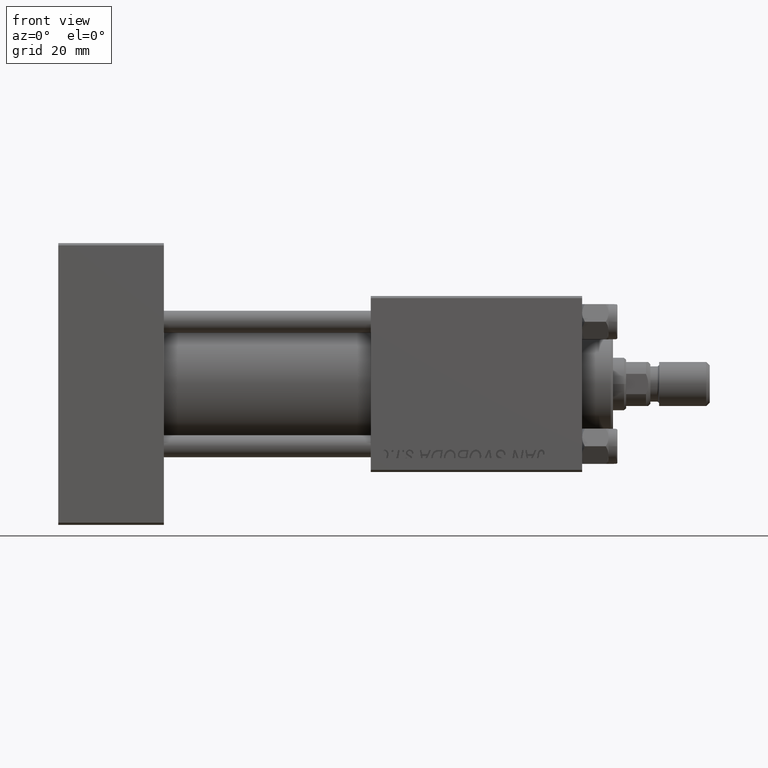
[diagram: clean part render]
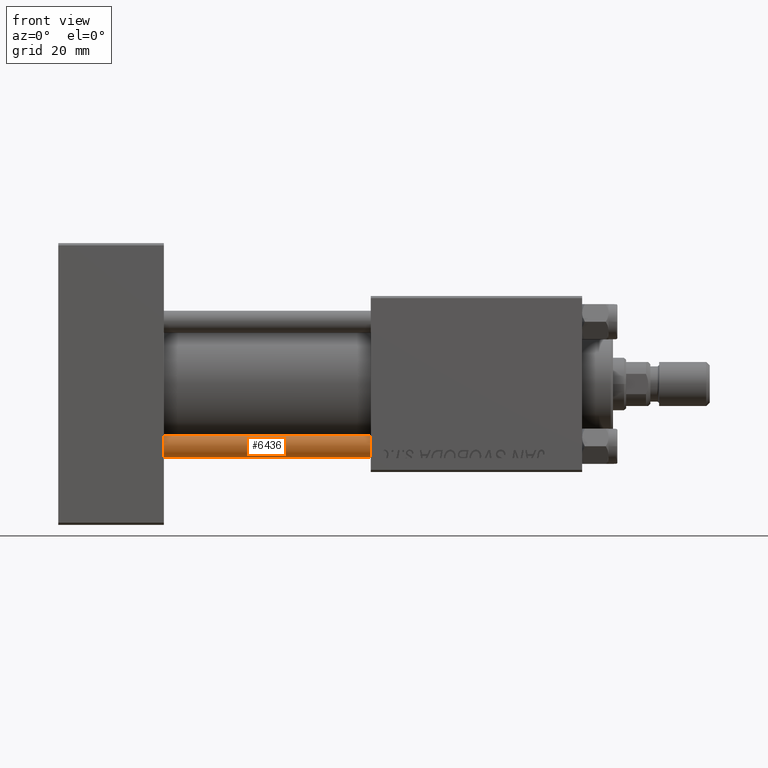
[diagram: same view with one face highlighted and labeled with its STEP entity id]
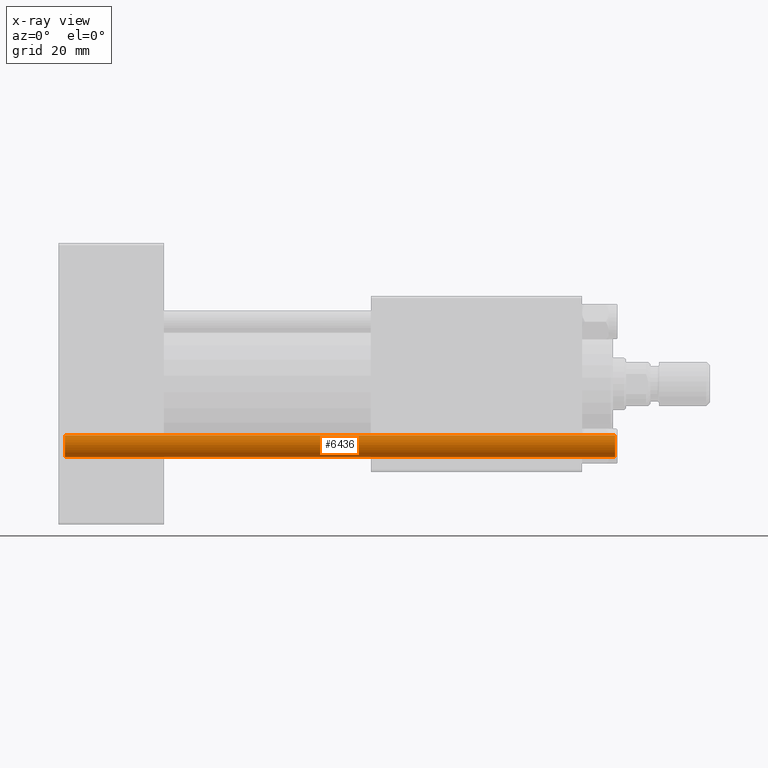
[diagram: x-ray of the same camera — body ghosted, the highlighted face saturated]
A machine part, front view. The second image highlights one B-rep face of the part: STEP entity #6436.
The next image is the same camera in x-ray: the body ghosted, the highlighted face saturated — about 0% of this face is hidden behind the body in this view.
In plain terms, the highlighted cylindrical surface (edge-blend (fillet) strip) has radius 2.5 mm, axis along (1, -0, -0).
Its self-contained STEP definition (entity closure, byte-faithful):
#1090 = ORIENTED_EDGE ( 'NONE', *, *, #19406, .T. ) ;
#1165 = CARTESIAN_POINT ( 'NONE',  ( 0.000000000000000000, 0.000000000000000000, 125.5000000000000568 ) ) ;
#2234 = CARTESIAN_POINT ( 'NONE',  ( 0.000000000000000000, 0.000000000000000000, 0.5000000000000004441 ) ) ;
#6436 = ADVANCED_FACE ( 'NONE', ( #12840 ), #16669, .T. ) ;
#6619 = LINE ( 'NONE', #18599, #12550 ) ;
#8377 = CARTESIAN_POINT ( 'NONE',  ( -2.500000000000000000, 0.000000000000000000, 125.5000000000000568 ) ) ;
#12550 = VECTOR ( 'NONE', #25723, 1000.000000000000000 ) ;
#12840 = FACE_OUTER_BOUND ( 'NONE', #15314, .T. ) ;
#13543 = CARTESIAN_POINT ( 'NONE',  ( 2.500000000000000000, 3.061616997868383141E-16, 0.5000000000000004441 ) ) ;
#13697 = DIRECTION ( 'NONE',  ( 1.000000000000000000, 0.000000000000000000, 0.000000000000000000 ) ) ;
#15314 = EDGE_LOOP ( 'NONE', ( #26348, #39910, #1090, #41928 ) ) ;
#15761 = DIRECTION ( 'NONE',  ( -0.000000000000000000, -0.000000000000000000, -1.000000000000000000 ) ) ;
#16343 = EDGE_CURVE ( 'NONE', #41298, #20808, #32124, .T. ) ;
#16669 = CYLINDRICAL_SURFACE ( 'NONE', #30996, 2.500000000000000000 ) ;
#18599 = CARTESIAN_POINT ( 'NONE',  ( -2.500000000000000000, 0.000000000000000000, 126.0000000000000000 ) ) ;
#19406 = EDGE_CURVE ( 'NONE', #35721, #41298, #6619, .T. ) ;
#20808 = VERTEX_POINT ( 'NONE', #13543 ) ;
#23771 = EDGE_CURVE ( 'NONE', #46068, #35721, #34557, .T. ) ;
#25723 = DIRECTION ( 'NONE',  ( -0.000000000000000000, -0.000000000000000000, -1.000000000000000000 ) ) ;
#26348 = ORIENTED_EDGE ( 'NONE', *, *, #30552, .F. ) ;
#26615 = VECTOR ( 'NONE', #15761, 1000.000000000000000 ) ;
#27190 = AXIS2_PLACEMENT_3D ( 'NONE', #1165, #27687, #39406 ) ;
#27229 = CARTESIAN_POINT ( 'NONE',  ( 2.500000000000000000, 3.061616997868383141E-16, 126.0000000000000000 ) ) ;
#27687 = DIRECTION ( 'NONE',  ( 0.000000000000000000, 0.000000000000000000, -1.000000000000000000 ) ) ;
#27803 = CARTESIAN_POINT ( 'NONE',  ( -2.500000000000000000, 0.000000000000000000, 0.5000000000000004441 ) ) ;
#27900 = CARTESIAN_POINT ( 'NONE',  ( 0.000000000000000000, 0.000000000000000000, 126.0000000000000000 ) ) ;
#28136 = DIRECTION ( 'NONE',  ( -0.000000000000000000, -0.000000000000000000, -1.000000000000000000 ) ) ;
#30552 = EDGE_CURVE ( 'NONE', #46068, #20808, #44834, .T. ) ;
#30996 = AXIS2_PLACEMENT_3D ( 'NONE', #27900, #28136, #32213 ) ;
#32124 = CIRCLE ( 'NONE', #36210, 2.500000000000000000 ) ;
#32213 = DIRECTION ( 'NONE',  ( -1.000000000000000000, 0.000000000000000000, 0.000000000000000000 ) ) ;
#34557 = CIRCLE ( 'NONE', #27190, 2.500000000000000000 ) ;
#35721 = VERTEX_POINT ( 'NONE', #8377 ) ;
#36210 = AXIS2_PLACEMENT_3D ( 'NONE', #2234, #49107, #13697 ) ;
#39406 = DIRECTION ( 'NONE',  ( 1.000000000000000000, 0.000000000000000000, 0.000000000000000000 ) ) ;
#39910 = ORIENTED_EDGE ( 'NONE', *, *, #23771, .T. ) ;
#40124 = CARTESIAN_POINT ( 'NONE',  ( 2.500000000000000000, 3.061616997868383141E-16, 125.5000000000000568 ) ) ;
#41298 = VERTEX_POINT ( 'NONE', #27803 ) ;
#41928 = ORIENTED_EDGE ( 'NONE', *, *, #16343, .T. ) ;
#44834 = LINE ( 'NONE', #27229, #26615 ) ;
#46068 = VERTEX_POINT ( 'NONE', #40124 ) ;
#49107 = DIRECTION ( 'NONE',  ( -0.000000000000000000, -0.000000000000000000, 1.000000000000000000 ) ) ;